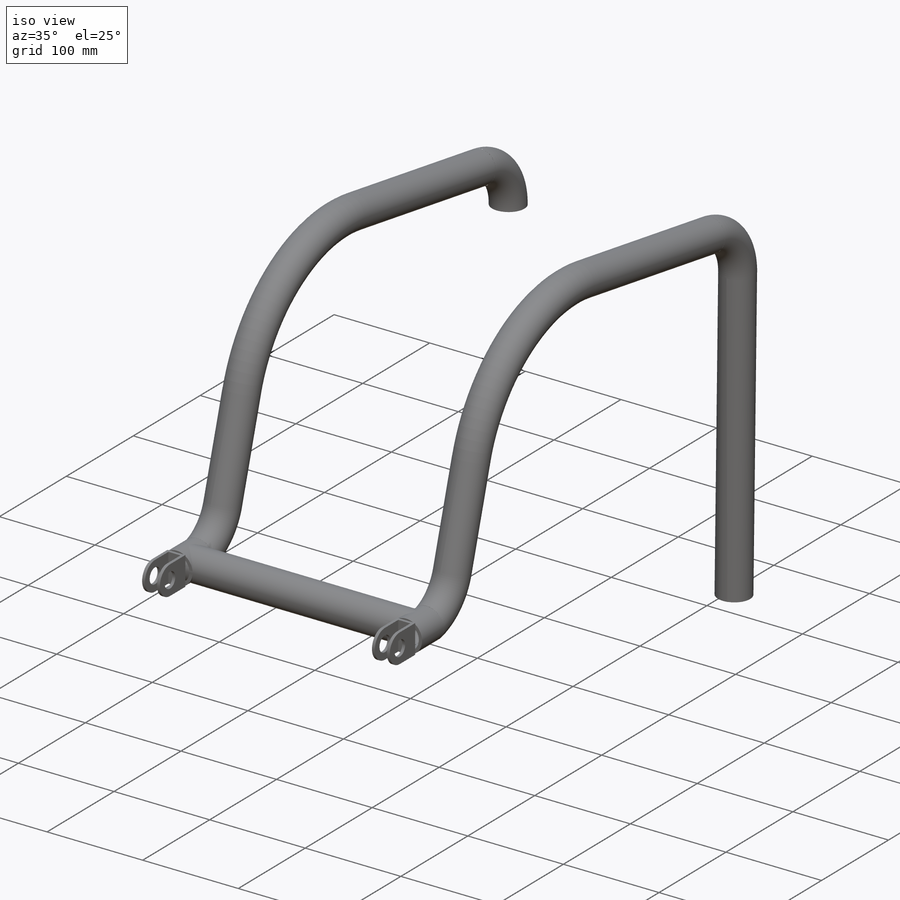
[diagram: iso view]
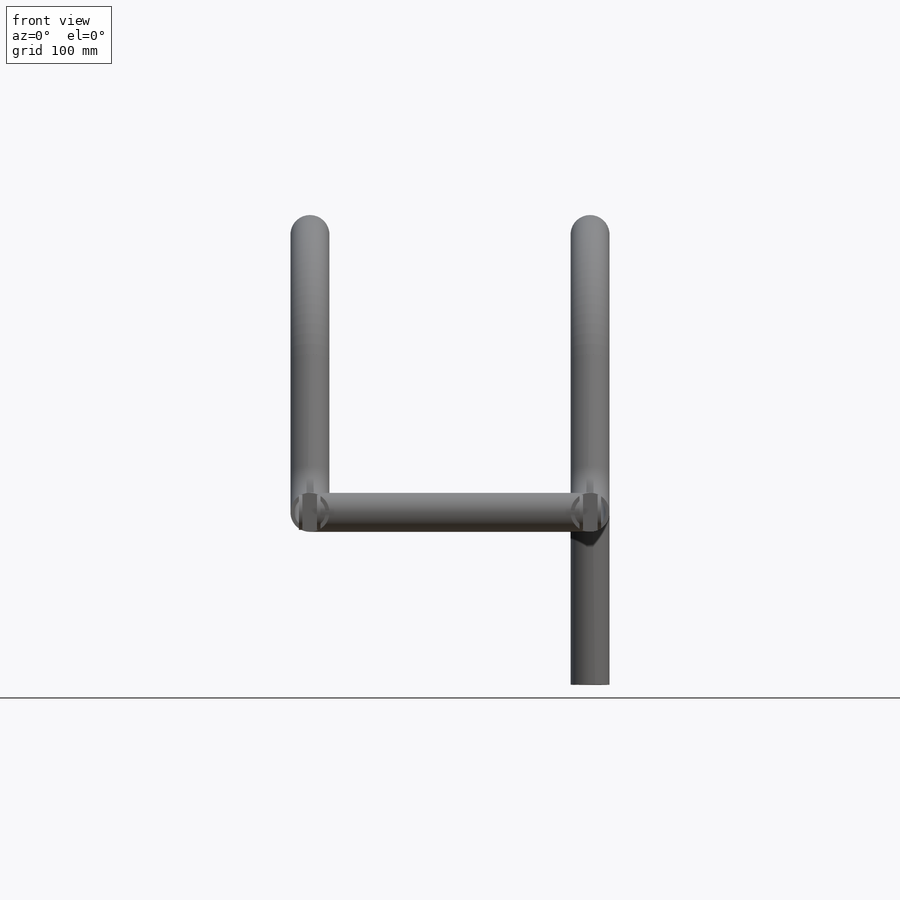
[diagram: front view]
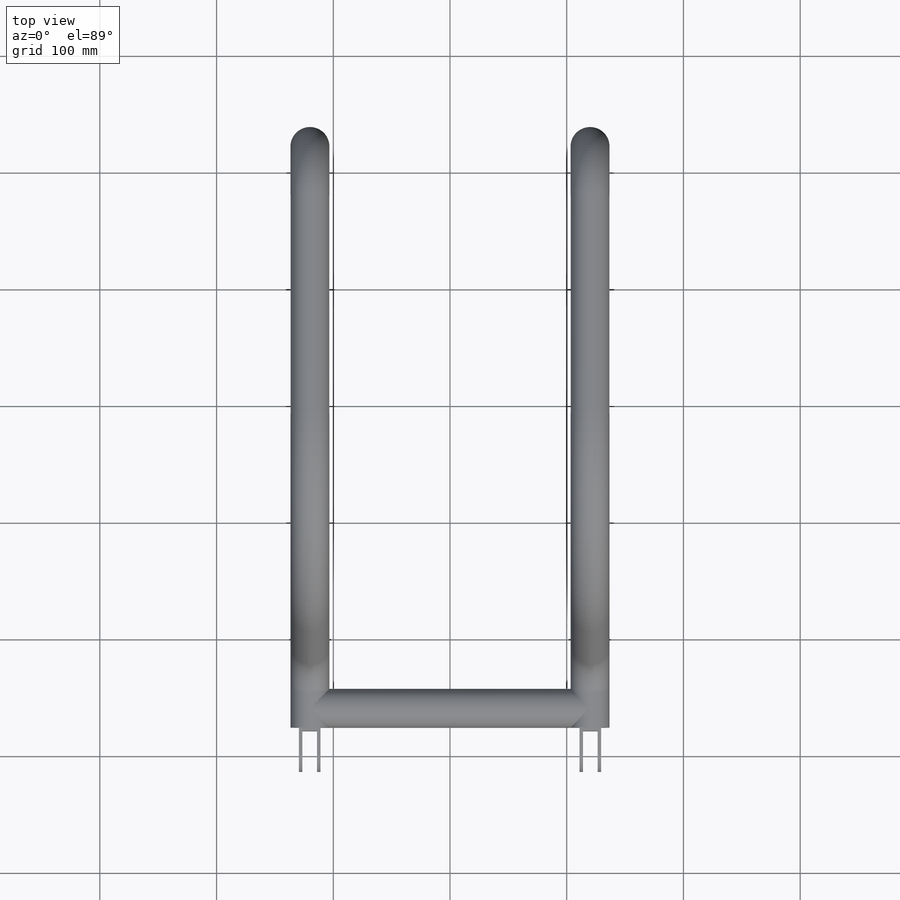
[diagram: top view]
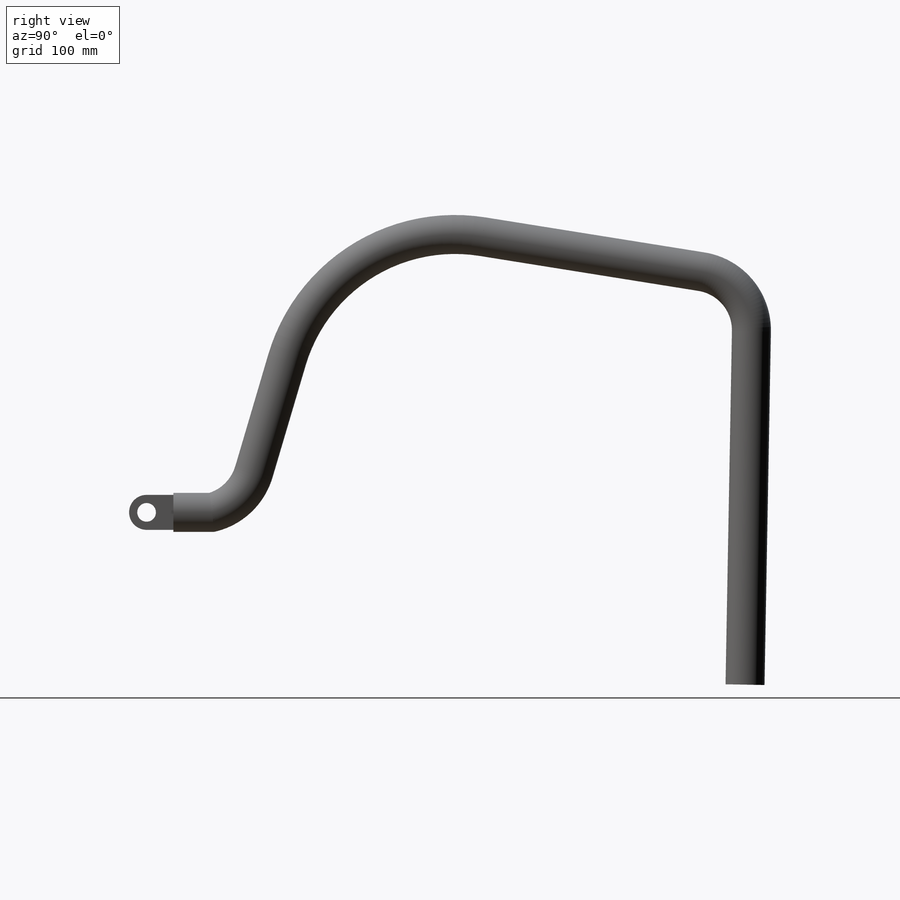
[diagram: right view]
SOLIDWORKS PART (.sldprt)
format: sldprt  version: not decoded by parser v0  size: 1,242,624 bytes
history: native  units: mm
features: sketch x35, plane x21, extrude x11, mirror x6, material x1 (+10 scaffold rows collapsed)
feature tree (84):
  scaffold x10  (default folders/planes/origin — collapsed)
  material  "Material <sin especificar>"
  plane  "Alzado"
  plane  "Planta"
  plane  "Vista lateral"
  sketch  "Croquis1"  dims[c1.D1=280.0mm c1.D2=~263.567718mm c1.D3=~302.84153mm c1.D4=420.0mm c1.D5=150.0mm c1.D6=~452.474341mm c1.D7=~278.164187mm c2.D7=~91.260614deg c2.D8=~234.194479mm c3.D8=~123.835442deg c3.D9=~268.698694mm c4.D9=~123.835442deg c4.D10=420.0mm c5.D10=~95.304019deg c5.D11=~95.891491mm c6.D11=~140.262101deg c6.D12=~54.390241mm c7.D12=~88.468577deg c7.D13=~27.713212mm c8.D13=~91.531423deg c8.D14=~181.088942mm c8.D15=~137.334159mm c8.D2=~61.043595mm c9.D2=27.0deg c9.D3=~61.043595mm]
  plane  "Plano1"  Offset=120mm
  sketch  "Croquis2"  dims[c1.D1=16.0mm c1.D3=30.0mm c1.D4=~8.548106mm c1.D7=33.4mm c1.D8=14.0mm c1.D11=14.0mm c2.D4=33.4mm c2.D2=20.0mm c3.D4=25.0mm c3.D5=3.0mm c3.D6=3.0mm c3.D7=~41.169618mm c3.D9=25.0mm c3.D10=3.0mm c3.D12=~44.294126mm c4.D12=25.78deg c4.D5=3.0mm]
  plane  "Plano2"  Offset=17.7mm
  plane  "Plano3"  Offset=0mm
  sketch  "Croquis8"
  plane  "Plano4"
  plane  "Plano8"
  sketch  "Croquis20"  dims[D1=33.4mm]
  sketch  "Croquis34"  dims[D2=50.8mm D4=150.0mm D1=33.0mm D3=100.0mm D5=260.0mm]
  sketch  "Croquis36"  dims[c1.D2=70.0mm c1.D3=~74.777373mm c1.D4=150.0mm c1.D5=~74.177333mm c2.D3=50.8mm c2.D7=150.0mm c2.D1=33.0mm c3.D3=~194.472156mm c3.D2=190.0mm c4.D3=275.0mm c4.D5=~302.795733mm c4.D6=33.0mm c5.D6=~106.480855deg c5.D7=100.0mm c6.D7=~97.396908deg c7.D7=100.0mm c8.D7=~97.396908deg c8.D8=190.0mm c9.D8=~98.048496deg]
  plane  "Plano18"  Offset=6.5mm
  sketch  "Croquis38"
  extrude  "Saliente-Extruir13"  Depth=3mm
  sketch  "Croquis39"
  extrude  "Saliente-Extruir14"  Depth=18.6mm
  sketch  "Croquis40"
  extrude  "Saliente-Extruir15"  Depth=3mm
  mirror  "Simetría1"
  plane  "Plano25"
  sketch  "Sketch1"  dims[In_dia=26.6446mm Out_dia=33.401mm D1=25.4mm]
  plane  "Plano26"
  sketch  "Croquis51"  dims[D1=33.0mm D2=240.0mm]
  mirror  "Miembro estructural13"
  plane  "Plano27"
  sketch  "Sketch111"  dims[In_dia=26.6446mm Out_dia=33.401mm D1=25.4mm]
  plane  "Plano28"
  sketch  "Croquis53"  dims[D1=25.6mm D2=~20.627301mm]
  extrude  "Saliente-Extruir16"  Depth=100mm
  plane  "Plano39"
  sketch  "Croquis73"
  sketch  "Croquis78"
  sketch  "Croquis79"
  plane  "Plano43"
  sketch  "Croquis80"  dims[c1.D1=100.0mm c1.D2=240.0mm c1.D3=100.0mm c1.D4=100.0mm c2.D4=~152.343864deg]
  sketch  "Croquis82"
  extrude  "Saliente-Extruir17"  Depth=3mm
  sketch  "Croquis83"  dims[D1=0.0mm]
  extrude  "Saliente-Extruir18"  Depth=3mm
  sketch  "Croquis84"  dims[D1=0.0mm]
  extrude  "Saliente-Extruir19"  Depth=3mm
  mirror  "Miembro estructural22"
  plane  "Plano44"
  sketch  "Sketch121"  dims[In_dia=26.6446mm Out_dia=33.401mm D1=25.4mm]
  sketch  "Croquis85"  dims[c1.D1=3.0mm c1.D2=~3.603101mm c2.D1=3.0mm c2.D2=~33.342947mm c3.D2=90.0deg]
  sketch  "Croquis86"  dims[D1=25.0mm]
  sketch  "Croquis87"  dims[D1=10.0mm]
  extrude  "Saliente-Extruir20"  Depth=3mm
  sketch  "Croquis88"
  extrude  "Saliente-Extruir21"  Depth=41.4mm
  sketch  "Croquis89"  dims[D1=0.0mm D2=0.0mm]
  extrude  "Saliente-Extruir22"  Depth=3mm
  plane  "Plano46"
  sketch  "Croquis91"  dims[D1=240.0mm]
  mirror  "Miembro estructural24"
  plane  "Plano47"
  sketch  "Sketch123"  dims[In_dia=26.6446mm Out_dia=33.401mm D1=25.4mm]
  sketch  "Croquis93"  dims[c1.D1=0.0mm c1.D2=0.0mm c1.D3=0.0mm c1.D4=0.0mm c2.D1=0.0mm c2.D2=0.0mm]
  mirror  "Miembro estructural26"
  plane  "Plano49"
  sketch  "Sketch125"  dims[In_dia=26.6446mm Out_dia=33.401mm D1=25.4mm]
  plane  "Plano50"
  sketch  "Croquis96"
  mirror  "Miembro estructural27"
  plane  "Plano51"
  sketch  "Sketch126"  dims[In_dia=26.6446mm Out_dia=33.401mm D1=25.4mm]
  sketch  "Croquis98"  dims[D1=0.0mm]
  sketch  "Croquis99"  dims[D1=0.0mm]
  sketch  "Croquis100"  dims[D1=120.0mm D2=80.0mm]
  extrude  "Saliente-Extruir23"  Depth=3mm
decode coverage: 36 of 52 modeling features carry decoded parameters
note: ~ marks probable driven/reference dimensions
note: suppression state not decoded; provenance and decode notes live in map.json
